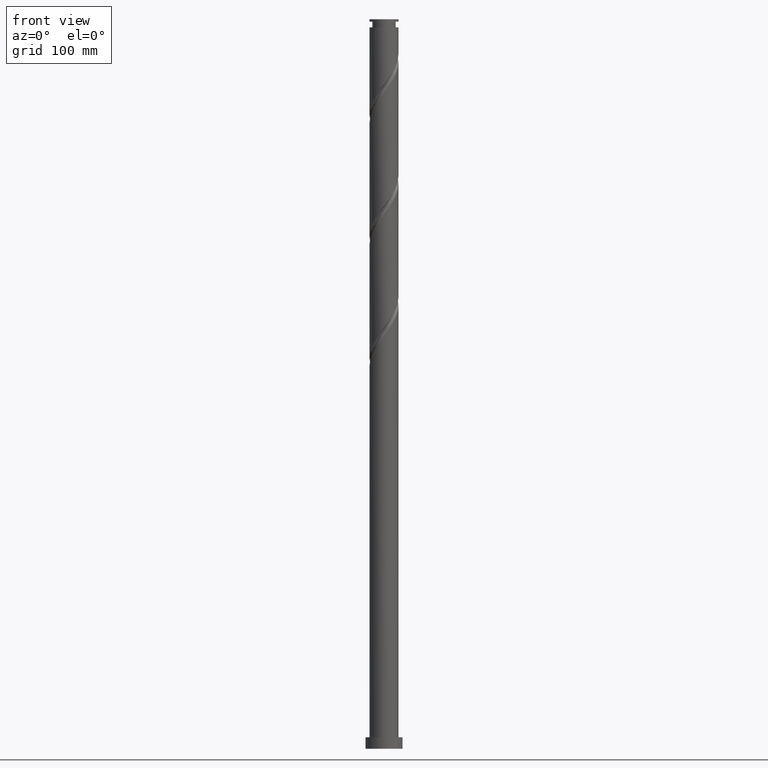
[diagram: clean part render]
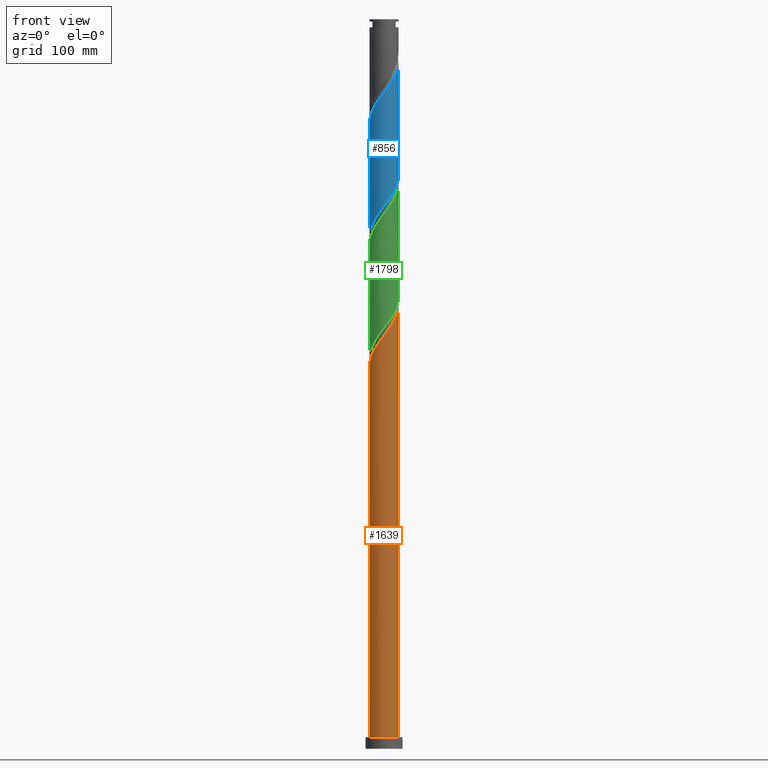
[diagram: same view with three faces highlighted in distinct colors, each labeled with its STEP entity id]
A machine part, front view with three faces highlighted in distinct colors.
Their STEP definitions:

[orange] entity #1639 — the highlighted cylindrical surface (edge-blend (fillet) strip) has radius 12.5 mm, axis along (-0, -0, -1).
#21 = CARTESIAN_POINT ( 'NONE',  ( -3.247457366233087228, -12.12623887693839464, 352.6922435647238103 ) ) ;
#57 = CARTESIAN_POINT ( 'NONE',  ( -6.414510163309529389, -10.72865599060755137, 348.0598906235472896 ) ) ;
#69 = CARTESIAN_POINT ( 'NONE',  ( 8.563682417406976555, -9.105676441308196090, 369.6775376823708825 ) ) ;
#83 = CARTESIAN_POINT ( 'NONE',  ( -0.9639726868114785185, -12.51648534154676540, 355.7804788588413771 ) ) ;
#104 = CARTESIAN_POINT ( 'NONE',  ( 11.27474576508964610, -5.397231506299655202, 375.8540082706061867 ) ) ;
#138 = CYLINDRICAL_SURFACE ( 'NONE', #708, 12.50000000000000000 ) ;
#148 = DIRECTION ( 'NONE',  ( 0.000000000000000000, 0.000000000000000000, 1.000000000000000000 ) ) ;
#175 = CARTESIAN_POINT ( 'NONE',  ( -12.30248021171703243, -2.498125154267604842, 334.1628318000180116 ) ) ;
#184 = CARTESIAN_POINT ( 'NONE',  ( -9.144686059876885764, -8.600370079965571790, 343.4275376823707688 ) ) ;
#218 = CARTESIAN_POINT ( 'NONE',  ( -11.63397781496923677, -4.716164633139658946, 337.2510670941354647 ) ) ;
#229 = DIRECTION ( 'NONE',  ( -0.000000000000000000, -0.000000000000000000, -1.000000000000000000 ) ) ;
#298 = ORIENTED_EDGE ( 'NONE', *, *, #1515, .T. ) ;
#333 =( BOUNDED_CURVE ( )  B_SPLINE_CURVE ( 2, ( #395, #2049, #1726, #175, #711, #218, #2039, #1221, #901, #184, #1887, #1566, #57, #733, #868, #21, #957, #83, #2121, #1773, #1122, #450, #2111, #2100, #1612, #1946, #69, #1578, #617, #581, #104, #429, #1280, #794, #1111, #1451, #1787 ),
 .UNSPECIFIED., .F., .T. ) 
 B_SPLINE_CURVE_WITH_KNOTS ( ( 3, 2, 2, 2, 2, 2, 2, 2, 2, 2, 2, 2, 2, 2, 2, 2, 2, 2, 3 ),
 ( 0.05452935731629041799, 0.05882352941176471894, 0.06617647058823528106, 0.07352941176470584317, 0.08088235294117651630, 0.08823529411764707842, 0.09558823529411764053, 0.1029411764705882026, 0.1102941176470588758, 0.1176470588235294379, 0.1250000000000000000, 0.1323529411764705621, 0.1397058823529411242, 0.1470588235294117974, 0.1544117647058823595, 0.1617647058823529216, 0.1691176470588234837, 0.1764705882352941568, 0.1795293573162907719 ),
 .UNSPECIFIED. ) 
 CURVE ( )  GEOMETRIC_REPRESENTATION_ITEM ( )  RATIONAL_B_SPLINE_CURVE ( ( 0.9072066346052971575, 0.9068261157890641355, 0.9090909090909354839, 0.9052128875409666264, 0.9090909090909354839, 0.9052128875409666264, 0.9090909090909354839, 0.9052128875409666264, 0.9090909090909354839, 0.9052128875409666264, 0.9090909090909354839, 0.9052128875409666264, 0.9090909090909354839, 0.9052128875409666264, 0.9090909090909354839, 0.9052128875409666264, 0.9090909090909354839, 0.9052128875409666264, 0.9090909090909354839, 0.9052128875409666264, 0.9090909090909354839, 0.9052128875409666264, 0.9090909090909354839, 0.9052128875409666264, 0.9090909090909354839, 0.9052128875409666264, 0.9090909090909354839, 0.9052128875409666264, 0.9090909090909354839, 0.9052128875409666264, 0.9090909090909354839, 0.9052128875409666264, 0.9090909090909354839, 0.9052128875409666264, 0.9090909090909354839, 0.9074776808428376418, 0.9072066346052969354 ) ) 
 REPRESENTATION_ITEM ( '' )  );
#353 = VECTOR ( 'NONE', #924, 1000.000000000000000 ) ;
#368 = CARTESIAN_POINT ( 'NONE',  ( 0.000000000000000000, 0.000000000000000000, 10.00000000000000000 ) ) ;
#395 = CARTESIAN_POINT ( 'NONE',  ( -12.50000000000002487, -5.796232452425225323E-15, 330.8146230253239537 ) ) ;
#398 = CARTESIAN_POINT ( 'NONE',  ( -12.50000000000002487, -5.796232452425225323E-15, 330.8146230253239537 ) ) ;
#410 = VERTEX_POINT ( 'NONE', #551 ) ;
#428 = VERTEX_POINT ( 'NONE', #398 ) ;
#429 = CARTESIAN_POINT ( 'NONE',  ( 11.77487291607572928, -4.352472453254565998, 377.3981259176649132 ) ) ;
#450 = CARTESIAN_POINT ( 'NONE',  ( 3.622598259231427864, -12.01950209028173866, 361.9569494470766813 ) ) ;
#467 = VECTOR ( 'NONE', #229, 1000.000000000000000 ) ;
#531 = CIRCLE ( 'NONE', #1487, 12.50000000000000000 ) ;
#551 = CARTESIAN_POINT ( 'NONE',  ( 12.50000000000002309, 6.812067005943047733E-15, 383.3146230253240674 ) ) ;
#581 = CARTESIAN_POINT ( 'NONE',  ( 10.77461861410355759, -6.441990559344743517, 374.3098906235472327 ) ) ;
#604 = CARTESIAN_POINT ( 'NONE',  ( 12.50000000000000000, 1.530808498934191521E-15, 630.0000000000000000 ) ) ;
#617 = CARTESIAN_POINT ( 'NONE',  ( 10.09103310603114956, -7.377062481298623631, 372.7657729764884493 ) ) ;
#707 = FACE_OUTER_BOUND ( 'NONE', #1740, .T. ) ;
#708 = AXIS2_PLACEMENT_3D ( 'NONE', #989, #1380, #1135 ) ;
#711 = CARTESIAN_POINT ( 'NONE',  ( -11.96822901334313016, -3.607144893703630117, 335.7069494470767381 ) ) ;
#723 = EDGE_CURVE ( 'NONE', #428, #1212, #2114, .T. ) ;
#733 = CARTESIAN_POINT ( 'NONE',  ( -5.420353779943434702, -11.32304789119637256, 349.6040082706061298 ) ) ;
#770 = LINE ( 'NONE', #604, #467 ) ;
#794 = CARTESIAN_POINT ( 'NONE',  ( 12.37414804329442219, -2.114736117984123531, 380.4863612117825369 ) ) ;
#868 = CARTESIAN_POINT ( 'NONE',  ( -4.333905573088259189, -11.72464338406738094, 351.1481259176650269 ) ) ;
#901 = CARTESIAN_POINT ( 'NONE',  ( -9.856990158513982081, -7.686985430905862060, 341.8834200353119854 ) ) ;
#924 = DIRECTION ( 'NONE',  ( -0.000000000000000000, -0.000000000000000000, -1.000000000000000000 ) ) ;
#957 = CARTESIAN_POINT ( 'NONE',  ( -2.105715026522279931, -12.32136210924258179, 354.2363612117827074 ) ) ;
#989 = CARTESIAN_POINT ( 'NONE',  ( 0.000000000000000000, 0.000000000000000000, 630.0000000000000000 ) ) ;
#1035 = DIRECTION ( 'NONE',  ( 1.000000000000000000, 0.000000000000000000, 0.000000000000000000 ) ) ;
#1111 = CARTESIAN_POINT ( 'NONE',  ( 12.46309222167394459, -0.9598605492731393518, 382.0304788588414340 ) ) ;
#1122 = CARTESIAN_POINT ( 'NONE',  ( 2.487468592766558295, -12.25000000000001776, 360.4128318000180116 ) ) ;
#1135 = DIRECTION ( 'NONE',  ( -1.000000000000000000, 0.000000000000000000, 0.000000000000000000 ) ) ;
#1157 = VERTEX_POINT ( 'NONE', #2029 ) ;
#1212 = VERTEX_POINT ( 'NONE', #1706 ) ;
#1221 = CARTESIAN_POINT ( 'NONE',  ( -10.56929425715108195, -6.773600781846151442, 340.3393023882531452 ) ) ;
#1249 = ORIENTED_EDGE ( 'NONE', *, *, #1345, .F. ) ;
#1280 = CARTESIAN_POINT ( 'NONE',  ( 12.07451047968507751, -3.233604285619339436, 378.9422435647238103 ) ) ;
#1345 = EDGE_CURVE ( 'NONE', #428, #410, #333, .T. ) ;
#1379 = EDGE_CURVE ( 'NONE', #410, #1157, #770, .T. ) ;
#1380 = DIRECTION ( 'NONE',  ( -0.000000000000000000, -0.000000000000000000, -1.000000000000000000 ) ) ;
#1451 = CARTESIAN_POINT ( 'NONE',  ( 12.50000000000002665, -0.4806398485959881284, 382.6712172732642898 ) ) ;
#1487 = AXIS2_PLACEMENT_3D ( 'NONE', #368, #148, #1035 ) ;
#1515 = EDGE_CURVE ( 'NONE', #1212, #1157, #531, .T. ) ;
#1566 = CARTESIAN_POINT ( 'NONE',  ( -7.408666546675617859, -10.13426409001873374, 346.5157729764885630 ) ) ;
#1578 = CARTESIAN_POINT ( 'NONE',  ( 9.407447597958743302, -8.312134403252509074, 371.2216553294297796 ) ) ;
#1612 = CARTESIAN_POINT ( 'NONE',  ( 6.744705795062980513, -10.52420751116416930, 366.5893023882532020 ) ) ;
#1639 = ADVANCED_FACE ( 'NONE', ( #707 ), #138, .T. ) ;
#1647 = ORIENTED_EDGE ( 'NONE', *, *, #1379, .F. ) ;
#1706 = CARTESIAN_POINT ( 'NONE',  ( -12.50000000000000000, 0.000000000000000000, 10.00000000000000000 ) ) ;
#1726 = CARTESIAN_POINT ( 'NONE',  ( -12.42725830588525149, -1.346570086852728165, 332.6187141529591145 ) ) ;
#1740 = EDGE_LOOP ( 'NONE', ( #1647, #1249, #1871, #298 ) ) ;
#1773 = CARTESIAN_POINT ( 'NONE',  ( 1.352338926301695832, -12.48049790971830220, 358.8687141529590576 ) ) ;
#1787 = CARTESIAN_POINT ( 'NONE',  ( 12.50000000000002309, 6.812067005943047733E-15, 383.3146230253241242 ) ) ;
#1871 = ORIENTED_EDGE ( 'NONE', *, *, #723, .T. ) ;
#1887 = CARTESIAN_POINT ( 'NONE',  ( -8.276676303276255808, -9.367317084992150100, 344.9716553294297228 ) ) ;
#1935 = CARTESIAN_POINT ( 'NONE',  ( -12.50000000000000000, 0.000000000000000000, 630.0000000000000000 ) ) ;
#1946 = CARTESIAN_POINT ( 'NONE',  ( 7.719917236855210696, -9.899218479363890211, 368.1334200353120423 ) ) ;
#2029 = CARTESIAN_POINT ( 'NONE',  ( 12.50000000000000000, 1.530808498934191521E-15, 10.00000000000000000 ) ) ;
#2039 = CARTESIAN_POINT ( 'NONE',  ( -11.10163603606015847, -5.744882707492903862, 338.7951847411944186 ) ) ;
#2049 = CARTESIAN_POINT ( 'NONE',  ( -12.50000000000002487, -0.6752497959907960423, 331.7185422573364804 ) ) ;
#2100 = CARTESIAN_POINT ( 'NONE',  ( 5.769494353270750331, -11.14919654296445550, 365.0451847411943618 ) ) ;
#2111 = CARTESIAN_POINT ( 'NONE',  ( 4.696046306251087543, -11.58434931662309531, 363.5010670941355215 ) ) ;
#2114 = LINE ( 'NONE', #1935, #353 ) ;
#2121 = CARTESIAN_POINT ( 'NONE',  ( 0.1941831197451086011, -12.49849162563253557, 357.3245965059002742 ) ) ;

[blue] entity #856 — the highlighted cylindrical surface (edge-blend (fillet) strip) has radius 12.5 mm, axis along (-0, -0, -1).
#5 = CARTESIAN_POINT ( 'NONE',  ( -12.50000000000000000, 0.000000000000000000, 630.0000000000000000 ) ) ;
#15 = CARTESIAN_POINT ( 'NONE',  ( 9.856990158513971423, -7.686985430905849626, 483.9422435647239240 ) ) ;
#43 = CARTESIAN_POINT ( 'NONE',  ( -9.144686059876885764, -8.600370079965571790, 553.4275376823707120 ) ) ;
#66 = CARTESIAN_POINT ( 'NONE',  ( 10.77461861410355759, -6.441990559344743517, 584.3098906235471759 ) ) ;
#126 = CARTESIAN_POINT ( 'NONE',  ( 11.77487291607572928, -4.352472453254565998, 587.3981259176649701 ) ) ;
#144 = CARTESIAN_POINT ( 'NONE',  ( 11.63397781496921723, -4.716164633139646511, 488.5745965059001605 ) ) ;
#153 = CARTESIAN_POINT ( 'NONE',  ( -12.50000000000000000, -0.4806398485960122757, 443.1544463267715628 ) ) ;
#160 = CARTESIAN_POINT ( 'NONE',  ( -6.744705795062970743, -10.52420751116415509, 459.2363612117826506 ) ) ;
#169 = CARTESIAN_POINT ( 'NONE',  ( 3.247457366233076570, -12.12623887693837688, 473.1334200353120423 ) ) ;
#178 = CARTESIAN_POINT ( 'NONE',  ( 9.144686059876866224, -8.600370079965562908, 482.3981259176648564 ) ) ;
#203 = CARTESIAN_POINT ( 'NONE',  ( -12.50000000000002132, 1.374364395935878062E-15, 540.8146230253239537 ) ) ;
#206 =( BOUNDED_CURVE ( )  B_SPLINE_CURVE ( 2, ( #350, #2023, #825, #2015, #1152, #144, #2005, #660, #15, #178, #499, #861, #1989, #1173, #1821, #169, #313, #1022, #1161, #1493, #997, #331, #1502, #1671, #160, #2176, #671, #1510, #509, #840, #1664, #2183, #679, #2167, #1182, #153, #1850 ),
 .UNSPECIFIED., .F., .T. ) 
 B_SPLINE_CURVE_WITH_KNOTS ( ( 3, 2, 2, 2, 2, 2, 2, 2, 2, 2, 2, 2, 2, 2, 2, 2, 2, 2, 3 ),
 ( 0.5545293573162904943, 0.5588235294117647189, 0.5661764705882352811, 0.5735294117647058432, 0.5808823529411765163, 0.5882352941176470784, 0.5955882352941176405, 0.6029411764705882026, 0.6102941176470588758, 0.6176470588235294379, 0.6250000000000000000, 0.6323529411764705621, 0.6397058823529411242, 0.6470588235294117974, 0.6544117647058823595, 0.6617647058823529216, 0.6691176470588234837, 0.6764705882352941568, 0.6795293573162906053 ),
 .UNSPECIFIED. ) 
 CURVE ( )  GEOMETRIC_REPRESENTATION_ITEM ( )  RATIONAL_B_SPLINE_CURVE ( ( 0.9072066346052909402, 0.9068261157890580293, 0.9090909090909291557, 0.9052128875409607422, 0.9090909090909291557, 0.9052128875409607422, 0.9090909090909291557, 0.9052128875409607422, 0.9090909090909291557, 0.9052128875409607422, 0.9090909090909291557, 0.9052128875409607422, 0.9090909090909291557, 0.9052128875409607422, 0.9090909090909291557, 0.9052128875409607422, 0.9090909090909291557, 0.9052128875409607422, 0.9090909090909291557, 0.9052128875409607422, 0.9090909090909291557, 0.9052128875409607422, 0.9090909090909291557, 0.9052128875409607422, 0.9090909090909291557, 0.9052128875409607422, 0.9090909090909291557, 0.9052128875409607422, 0.9090909090909291557, 0.9052128875409607422, 0.9090909090909291557, 0.9052128875409607422, 0.9090909090909291557, 0.9052128875409607422, 0.9090909090909291557, 0.9074776808428317576, 0.9072066346052909402 ) ) 
 REPRESENTATION_ITEM ( '' )  );
#215 = CARTESIAN_POINT ( 'NONE',  ( -12.50000000000001599, -0.6752497959908603242, 541.7185422573367077 ) ) ;
#225 = CARTESIAN_POINT ( 'NONE',  ( 8.563682417406976555, -9.105676441308196090, 579.6775376823707120 ) ) ;
#239 = EDGE_CURVE ( 'NONE', #598, #1213, #1860, .T. ) ;
#245 = AXIS2_PLACEMENT_3D ( 'NONE', #1325, #812, #837 ) ;
#263 = EDGE_CURVE ( 'NONE', #357, #1213, #206, .T. ) ;
#266 = CARTESIAN_POINT ( 'NONE',  ( 12.07451047968507751, -3.233604285619339436, 588.9422435647236398 ) ) ;
#313 = CARTESIAN_POINT ( 'NONE',  ( 2.105715026522276823, -12.32136210924256403, 471.5893023882532589 ) ) ;
#314 = CARTESIAN_POINT ( 'NONE',  ( 12.50000000000002132, -4.780397898907402125E-16, 593.3146230253239537 ) ) ;
#331 = CARTESIAN_POINT ( 'NONE',  ( -3.622598259231421647, -12.01950209028172090, 463.8687141529590008 ) ) ;
#350 = CARTESIAN_POINT ( 'NONE',  ( 12.50000000000000000, -7.768146585724579434E-15, 495.0110405747118989 ) ) ;
#357 = VERTEX_POINT ( 'NONE', #871 ) ;
#380 = CARTESIAN_POINT ( 'NONE',  ( -12.42725830588525149, -1.346570086852728165, 542.6187141529590008 ) ) ;
#391 = CARTESIAN_POINT ( 'NONE',  ( -6.414510163309529389, -10.72865599060755137, 558.0598906235472896 ) ) ;
#402 = CARTESIAN_POINT ( 'NONE',  ( -3.247457366233087228, -12.12623887693839464, 562.6922435647236398 ) ) ;
#415 = CARTESIAN_POINT ( 'NONE',  ( -4.333905573088259189, -11.72464338406738094, 561.1481259176650838 ) ) ;
#499 = CARTESIAN_POINT ( 'NONE',  ( 8.276676303276238045, -9.367317084992139442, 480.8540082706061298 ) ) ;
#509 = CARTESIAN_POINT ( 'NONE',  ( -10.09103310603113890, -7.377062481298608532, 453.0598906235473464 ) ) ;
#589 = CARTESIAN_POINT ( 'NONE',  ( -10.56929425715108195, -6.773600781846151442, 550.3393023882532589 ) ) ;
#598 = VERTEX_POINT ( 'NONE', #620 ) ;
#620 = CARTESIAN_POINT ( 'NONE',  ( -12.50000000000002132, 1.374364395935878062E-15, 540.8146230253239537 ) ) ;
#639 = CARTESIAN_POINT ( 'NONE',  ( 12.37414804329442219, -2.114736117984123531, 590.4863612117825369 ) ) ;
#660 = CARTESIAN_POINT ( 'NONE',  ( 10.56929425715106063, -6.773600781846142560, 485.4863612117825937 ) ) ;
#671 = CARTESIAN_POINT ( 'NONE',  ( -8.563682417406964120, -9.105676441308181879, 456.1481259176650838 ) ) ;
#679 = CARTESIAN_POINT ( 'NONE',  ( -12.07451047968505975, -3.233604285619334995, 446.8834200353119286 ) ) ;
#694 = ORIENTED_EDGE ( 'NONE', *, *, #263, .F. ) ;
#719 = CARTESIAN_POINT ( 'NONE',  ( 5.769494353270750331, -11.14919654296445550, 575.0451847411944755 ) ) ;
#720 = ORIENTED_EDGE ( 'NONE', *, *, #239, .T. ) ;
#756 = CARTESIAN_POINT ( 'NONE',  ( -0.9639726868114785185, -12.51648534154676540, 565.7804788588415477 ) ) ;
#762 = FACE_OUTER_BOUND ( 'NONE', #1420, .T. ) ;
#812 = DIRECTION ( 'NONE',  ( -0.000000000000000000, -0.000000000000000000, -1.000000000000000000 ) ) ;
#824 = VECTOR ( 'NONE', #875, 1000.000000000000000 ) ;
#825 = CARTESIAN_POINT ( 'NONE',  ( 12.42725830588523195, -1.346570086852733938, 493.2069494470767381 ) ) ;
#837 = DIRECTION ( 'NONE',  ( -1.000000000000000000, 0.000000000000000000, 0.000000000000000000 ) ) ;
#840 = CARTESIAN_POINT ( 'NONE',  ( -10.77461861410353983, -6.441990559344731082, 451.5157729764885062 ) ) ;
#856 = ADVANCED_FACE ( 'NONE', ( #762 ), #1317, .T. ) ;
#861 = CARTESIAN_POINT ( 'NONE',  ( 7.408666546675605424, -10.13426409001871598, 479.3098906235471759 ) ) ;
#871 = CARTESIAN_POINT ( 'NONE',  ( 12.50000000000000000, -7.768146585724579434E-15, 495.0110405747118989 ) ) ;
#875 = DIRECTION ( 'NONE',  ( -0.000000000000000000, -0.000000000000000000, -1.000000000000000000 ) ) ;
#898 = CARTESIAN_POINT ( 'NONE',  ( -11.63397781496923677, -4.716164633139658946, 547.2510670941354647 ) ) ;
#907 = CARTESIAN_POINT ( 'NONE',  ( 9.407447597958743302, -8.312134403252509074, 581.2216553294298365 ) ) ;
#929 = CARTESIAN_POINT ( 'NONE',  ( 2.487468592766558295, -12.25000000000001776, 570.4128318000178979 ) ) ;
#942 = CARTESIAN_POINT ( 'NONE',  ( 12.50000000000002132, -4.780397898907402125E-16, 593.3146230253239537 ) ) ;
#954 = CARTESIAN_POINT ( 'NONE',  ( 12.46309222167394459, -0.9598605492731393518, 592.0304788588417750 ) ) ;
#997 = CARTESIAN_POINT ( 'NONE',  ( -2.487468592766560516, -12.25000000000000000, 465.4128318000179547 ) ) ;
#1022 = CARTESIAN_POINT ( 'NONE',  ( 0.9639726868114723013, -12.51648534154674586, 470.0451847411943049 ) ) ;
#1068 = CARTESIAN_POINT ( 'NONE',  ( 3.622598259231427864, -12.01950209028173866, 571.9569494470766813 ) ) ;
#1079 = CARTESIAN_POINT ( 'NONE',  ( -2.105715026522279931, -12.32136210924258179, 564.2363612117826506 ) ) ;
#1093 = CARTESIAN_POINT ( 'NONE',  ( -11.96822901334313016, -3.607144893703630117, 545.7069494470769087 ) ) ;
#1144 = CARTESIAN_POINT ( 'NONE',  ( 12.50000000000002309, -0.4806398485960490241, 592.6712172732643467 ) ) ;
#1152 = CARTESIAN_POINT ( 'NONE',  ( 11.96822901334311595, -3.607144893703627009, 490.1187141529591713 ) ) ;
#1155 = LINE ( 'NONE', #1702, #824 ) ;
#1161 = CARTESIAN_POINT ( 'NONE',  ( -0.1941831197451131807, -12.49849162563251603, 468.5010670941355784 ) ) ;
#1173 = CARTESIAN_POINT ( 'NONE',  ( 5.420353779943422268, -11.32304789119635302, 476.2216553294296659 ) ) ;
#1182 = CARTESIAN_POINT ( 'NONE',  ( -12.46309222167392505, -0.9598605492731333566, 443.7951847411944755 ) ) ;
#1213 = VERTEX_POINT ( 'NONE', #1714 ) ;
#1227 = CARTESIAN_POINT ( 'NONE',  ( -5.420353779943434702, -11.32304789119637256, 559.6040082706061867 ) ) ;
#1237 = CARTESIAN_POINT ( 'NONE',  ( -7.408666546675617859, -10.13426409001873374, 556.5157729764886199 ) ) ;
#1243 = ORIENTED_EDGE ( 'NONE', *, *, #1733, .F. ) ;
#1317 = CYLINDRICAL_SURFACE ( 'NONE', #245, 12.50000000000000000 ) ;
#1325 = CARTESIAN_POINT ( 'NONE',  ( 0.000000000000000000, 0.000000000000000000, 630.0000000000000000 ) ) ;
#1391 = CARTESIAN_POINT ( 'NONE',  ( 6.744705795062980513, -10.52420751116416930, 576.5893023882534862 ) ) ;
#1403 = CARTESIAN_POINT ( 'NONE',  ( -11.10163603606015847, -5.744882707492903862, 548.7951847411944755 ) ) ;
#1413 = VECTOR ( 'NONE', #1841, 1000.000000000000000 ) ;
#1420 = EDGE_LOOP ( 'NONE', ( #2158, #1243, #720, #694 ) ) ;
#1428 = CARTESIAN_POINT ( 'NONE',  ( 0.1941831197451086011, -12.49849162563253557, 567.3245965059002174 ) ) ;
#1493 = CARTESIAN_POINT ( 'NONE',  ( -1.352338926301692945, -12.48049790971827733, 466.9569494470766813 ) ) ;
#1502 = CARTESIAN_POINT ( 'NONE',  ( -4.696046306251083990, -11.58434931662307932, 462.3245965059002742 ) ) ;
#1510 = CARTESIAN_POINT ( 'NONE',  ( -9.407447597958730867, -8.312134403252489534, 454.6040082706060730 ) ) ;
#1526 = EDGE_CURVE ( 'NONE', #1805, #357, #1155, .T. ) ;
#1575 = CARTESIAN_POINT ( 'NONE',  ( 10.09103310603114956, -7.377062481298623631, 582.7657729764885062 ) ) ;
#1586 = CARTESIAN_POINT ( 'NONE',  ( -9.856990158513982081, -7.686985430905862060, 551.8834200353120423 ) ) ;
#1598 = CARTESIAN_POINT ( 'NONE',  ( 4.696046306251087543, -11.58434931662309531, 573.5010670941354647 ) ) ;
#1656 = CARTESIAN_POINT ( 'NONE',  ( 11.27474576508964610, -5.397231506299655202, 585.8540082706060730 ) ) ;
#1664 = CARTESIAN_POINT ( 'NONE',  ( -11.27474576508963189, -5.397231506299641879, 449.9716553294297796 ) ) ;
#1671 = CARTESIAN_POINT ( 'NONE',  ( -5.769494353270745002, -11.14919654296443596, 460.7804788588412634 ) ) ;
#1702 = CARTESIAN_POINT ( 'NONE',  ( 12.50000000000000000, 1.530808498934191521E-15, 630.0000000000000000 ) ) ;
#1714 = CARTESIAN_POINT ( 'NONE',  ( -12.50000000000000000, 7.230351822097493687E-15, 442.5110405747118989 ) ) ;
#1733 = EDGE_CURVE ( 'NONE', #598, #1805, #1827, .T. ) ;
#1734 = CARTESIAN_POINT ( 'NONE',  ( 7.719917236855210696, -9.899218479363890211, 578.1334200353119286 ) ) ;
#1805 = VERTEX_POINT ( 'NONE', #314 ) ;
#1821 = CARTESIAN_POINT ( 'NONE',  ( 4.333905573088252083, -11.72464338406736317, 474.6775376823708825 ) ) ;
#1827 =( BOUNDED_CURVE ( )  B_SPLINE_CURVE ( 2, ( #203, #215, #380, #1919, #1093, #898, #1403, #589, #1586, #43, #1930, #1237, #391, #1227, #415, #402, #1079, #756, #1428, #2047, #929, #1068, #1598, #719, #1391, #1734, #225, #907, #1575, #66, #1656, #126, #266, #639, #954, #1144, #942 ),
 .UNSPECIFIED., .F., .T. ) 
 B_SPLINE_CURVE_WITH_KNOTS ( ( 3, 2, 2, 2, 2, 2, 2, 2, 2, 2, 2, 2, 2, 2, 2, 2, 2, 2, 3 ),
 ( 0.5545293573162908274, 0.5588235294117647189, 0.5661764705882352811, 0.5735294117647058432, 0.5808823529411764053, 0.5882352941176470784, 0.5955882352941176405, 0.6029411764705883137, 0.6102941176470588758, 0.6176470588235294379, 0.6250000000000000000, 0.6323529411764705621, 0.6397058823529411242, 0.6470588235294116863, 0.6544117647058823595, 0.6617647058823529216, 0.6691176470588235947, 0.6764705882352941568, 0.6795293573162903833 ),
 .UNSPECIFIED. ) 
 CURVE ( )  GEOMETRIC_REPRESENTATION_ITEM ( )  RATIONAL_B_SPLINE_CURVE ( ( 0.9072066346052970465, 0.9068261157890643576, 0.9090909090909354839, 0.9052128875409666264, 0.9090909090909354839, 0.9052128875409666264, 0.9090909090909354839, 0.9052128875409666264, 0.9090909090909354839, 0.9052128875409666264, 0.9090909090909354839, 0.9052128875409666264, 0.9090909090909354839, 0.9052128875409666264, 0.9090909090909354839, 0.9052128875409666264, 0.9090909090909354839, 0.9052128875409666264, 0.9090909090909354839, 0.9052128875409666264, 0.9090909090909354839, 0.9052128875409666264, 0.9090909090909354839, 0.9052128875409666264, 0.9090909090909354839, 0.9052128875409666264, 0.9090909090909354839, 0.9052128875409666264, 0.9090909090909354839, 0.9052128875409666264, 0.9090909090909354839, 0.9052128875409666264, 0.9090909090909354839, 0.9052128875409666264, 0.9090909090909354839, 0.9074776808428378638, 0.9072066346052969354 ) ) 
 REPRESENTATION_ITEM ( '' )  );
#1841 = DIRECTION ( 'NONE',  ( -0.000000000000000000, -0.000000000000000000, -1.000000000000000000 ) ) ;
#1850 = CARTESIAN_POINT ( 'NONE',  ( -12.50000000000000000, 7.230351822097493687E-15, 442.5110405747118989 ) ) ;
#1860 = LINE ( 'NONE', #5, #1413 ) ;
#1919 = CARTESIAN_POINT ( 'NONE',  ( -12.30248021171703243, -2.498125154267604842, 544.1628318000178979 ) ) ;
#1930 = CARTESIAN_POINT ( 'NONE',  ( -8.276676303276255808, -9.367317084992150100, 554.9716553294298365 ) ) ;
#1989 = CARTESIAN_POINT ( 'NONE',  ( 6.414510163309515178, -10.72865599060753539, 477.7657729764885062 ) ) ;
#2005 = CARTESIAN_POINT ( 'NONE',  ( 11.10163603606013893, -5.744882707492901197, 487.0304788588414340 ) ) ;
#2015 = CARTESIAN_POINT ( 'NONE',  ( 12.30248021171700934, -2.498125154267606174, 491.6628318000178410 ) ) ;
#2023 = CARTESIAN_POINT ( 'NONE',  ( 12.50000000000000355, -0.6752497959908101421, 494.1071213426992017 ) ) ;
#2047 = CARTESIAN_POINT ( 'NONE',  ( 1.352338926301695832, -12.48049790971830220, 568.8687141529590008 ) ) ;
#2158 = ORIENTED_EDGE ( 'NONE', *, *, #1526, .F. ) ;
#2167 = CARTESIAN_POINT ( 'NONE',  ( -12.37414804329440088, -2.114736117984117758, 445.3393023882530883 ) ) ;
#2176 = CARTESIAN_POINT ( 'NONE',  ( -7.719917236855200038, -9.899218479363868894, 457.6922435647236398 ) ) ;
#2183 = CARTESIAN_POINT ( 'NONE',  ( -11.77487291607571329, -4.352472453254556228, 448.4275376823708257 ) ) ;

[green] entity #1798 — the highlighted cylindrical surface (edge-blend (fillet) strip) has radius 12.5 mm, axis along (-0, -0, -1).
#30 = EDGE_CURVE ( 'NONE', #2133, #1121, #1856, .T. ) ;
#61 = CARTESIAN_POINT ( 'NONE',  ( -4.333905573088259189, -11.72464338406738094, 456.1481259176649701 ) ) ;
#94 = CARTESIAN_POINT ( 'NONE',  ( 3.247457366233076570, -12.12623887693837688, 368.1334200353120423 ) ) ;
#107 = CARTESIAN_POINT ( 'NONE',  ( 11.77487291607572928, -4.352472453254565998, 482.3981259176650269 ) ) ;
#119 = CARTESIAN_POINT ( 'NONE',  ( -7.719917236855200038, -9.899218479363868894, 352.6922435647236398 ) ) ;
#122 = CARTESIAN_POINT ( 'NONE',  ( 6.744705795062980513, -10.52420751116416930, 471.5893023882532020 ) ) ;
#241 = CARTESIAN_POINT ( 'NONE',  ( -12.50000000000000000, 7.230351822097493687E-15, 337.5110405747118421 ) ) ;
#256 = CARTESIAN_POINT ( 'NONE',  ( 8.276676303276238045, -9.367317084992139442, 375.8540082706061298 ) ) ;
#259 =( BOUNDED_CURVE ( )  B_SPLINE_CURVE ( 2, ( #1590, #781, #2087, #932, #1099, #909, #758, #921, #1764, #1431, #256, #1462, #271, #1292, #1958, #94, #1969, #591, #1750, #284, #629, #1071, #1625, #946, #1266, #119, #1600, #440, #1442, #2134, #1302, #1254, #1922, #1084, #1932, #1737, #241 ),
 .UNSPECIFIED., .F., .T. ) 
 B_SPLINE_CURVE_WITH_KNOTS ( ( 3, 2, 2, 2, 2, 2, 2, 2, 2, 2, 2, 2, 2, 2, 2, 2, 2, 2, 3 ),
 ( 0.8045293573162904943, 0.8088235294117647189, 0.8161764705882352811, 0.8235294117647058432, 0.8308823529411765163, 0.8382352941176470784, 0.8455882352941176405, 0.8529411764705882026, 0.8602941176470588758, 0.8676470588235294379, 0.8750000000000000000, 0.8823529411764705621, 0.8897058823529411242, 0.8970588235294117974, 0.9044117647058823595, 0.9117647058823529216, 0.9191176470588234837, 0.9264705882352941568, 0.9295293573162904943 ),
 .UNSPECIFIED. ) 
 CURVE ( )  GEOMETRIC_REPRESENTATION_ITEM ( )  RATIONAL_B_SPLINE_CURVE ( ( 0.9072066346052909402, 0.9068261157890580293, 0.9090909090909291557, 0.9052128875409607422, 0.9090909090909291557, 0.9052128875409607422, 0.9090909090909291557, 0.9052128875409607422, 0.9090909090909291557, 0.9052128875409607422, 0.9090909090909291557, 0.9052128875409607422, 0.9090909090909291557, 0.9052128875409607422, 0.9090909090909291557, 0.9052128875409607422, 0.9090909090909291557, 0.9052128875409607422, 0.9090909090909291557, 0.9052128875409607422, 0.9090909090909291557, 0.9052128875409607422, 0.9090909090909291557, 0.9052128875409607422, 0.9090909090909291557, 0.9052128875409607422, 0.9090909090909291557, 0.9052128875409607422, 0.9090909090909291557, 0.9052128875409607422, 0.9090909090909291557, 0.9052128875409607422, 0.9090909090909291557, 0.9052128875409607422, 0.9090909090909291557, 0.9074776808428317576, 0.9072066346052909402 ) ) 
 REPRESENTATION_ITEM ( '' )  );
#271 = CARTESIAN_POINT ( 'NONE',  ( 6.414510163309515178, -10.72865599060753539, 372.7657729764885062 ) ) ;
#284 = CARTESIAN_POINT ( 'NONE',  ( -1.352338926301692945, -12.48049790971827733, 361.9569494470766813 ) ) ;
#341 = CARTESIAN_POINT ( 'NONE',  ( -12.50000000000002487, -5.796232452425225323E-15, 435.8146230253240105 ) ) ;
#386 = CARTESIAN_POINT ( 'NONE',  ( -12.30248021171703243, -2.498125154267604842, 439.1628318000178979 ) ) ;
#411 = CARTESIAN_POINT ( 'NONE',  ( -5.420353779943434702, -11.32304789119637256, 454.6040082706060161 ) ) ;
#420 = CARTESIAN_POINT ( 'NONE',  ( 2.487468592766558295, -12.25000000000001776, 465.4128318000178410 ) ) ;
#440 = CARTESIAN_POINT ( 'NONE',  ( -9.407447597958730867, -8.312134403252489534, 349.6040082706061298 ) ) ;
#464 = CARTESIAN_POINT ( 'NONE',  ( 3.622598259231427864, -12.01950209028173866, 466.9569494470767381 ) ) ;
#470 = DIRECTION ( 'NONE',  ( -0.000000000000000000, -0.000000000000000000, -1.000000000000000000 ) ) ;
#498 = EDGE_CURVE ( 'NONE', #2133, #1298, #1748, .T. ) ;
#526 = CARTESIAN_POINT ( 'NONE',  ( -2.105715026522279931, -12.32136210924258179, 459.2363612117826506 ) ) ;
#574 = CARTESIAN_POINT ( 'NONE',  ( -3.247457366233087228, -12.12623887693839464, 457.6922435647238103 ) ) ;
#591 = CARTESIAN_POINT ( 'NONE',  ( 0.9639726868114723013, -12.51648534154674586, 365.0451847411943618 ) ) ;
#594 = CARTESIAN_POINT ( 'NONE',  ( 11.27474576508964610, -5.397231506299655202, 480.8540082706060730 ) ) ;
#609 = CARTESIAN_POINT ( 'NONE',  ( -0.9639726868114785185, -12.51648534154676540, 460.7804788588414908 ) ) ;
#623 = ORIENTED_EDGE ( 'NONE', *, *, #30, .T. ) ;
#629 = CARTESIAN_POINT ( 'NONE',  ( -2.487468592766560516, -12.25000000000000000, 360.4128318000179547 ) ) ;
#676 = CARTESIAN_POINT ( 'NONE',  ( 12.50000000000000000, -7.768146585724579434E-15, 390.0110405747118989 ) ) ;
#751 = CARTESIAN_POINT ( 'NONE',  ( 10.09103310603114956, -7.377062481298623631, 477.7657729764885062 ) ) ;
#758 = CARTESIAN_POINT ( 'NONE',  ( 11.10163603606013893, -5.744882707492901197, 382.0304788588414340 ) ) ;
#775 = CARTESIAN_POINT ( 'NONE',  ( 0.1941831197451086011, -12.49849162563253557, 462.3245965059002174 ) ) ;
#781 = CARTESIAN_POINT ( 'NONE',  ( 12.50000000000000355, -0.6752497959908101421, 389.1071213426992585 ) ) ;
#785 = CARTESIAN_POINT ( 'NONE',  ( 4.696046306251087543, -11.58434931662309531, 468.5010670941355784 ) ) ;
#894 = CARTESIAN_POINT ( 'NONE',  ( -7.408666546675617859, -10.13426409001873374, 451.5157729764885062 ) ) ;
#904 = CARTESIAN_POINT ( 'NONE',  ( -11.10163603606015847, -5.744882707492903862, 443.7951847411944755 ) ) ;
#909 = CARTESIAN_POINT ( 'NONE',  ( 11.63397781496921723, -4.716164633139646511, 383.5745965059002742 ) ) ;
#921 = CARTESIAN_POINT ( 'NONE',  ( 10.56929425715106063, -6.773600781846142560, 380.4863612117825937 ) ) ;
#932 = CARTESIAN_POINT ( 'NONE',  ( 12.30248021171700934, -2.498125154267606174, 386.6628318000179547 ) ) ;
#946 = CARTESIAN_POINT ( 'NONE',  ( -5.769494353270745002, -11.14919654296443596, 355.7804788588414340 ) ) ;
#949 = CARTESIAN_POINT ( 'NONE',  ( 10.77461861410355759, -6.441990559344743517, 479.3098906235473464 ) ) ;
#988 = CARTESIAN_POINT ( 'NONE',  ( -12.50000000000000000, 0.000000000000000000, 630.0000000000000000 ) ) ;
#1055 = EDGE_LOOP ( 'NONE', ( #2077, #1139, #623, #1776 ) ) ;
#1071 = CARTESIAN_POINT ( 'NONE',  ( -3.622598259231421647, -12.01950209028172090, 358.8687141529590008 ) ) ;
#1084 = CARTESIAN_POINT ( 'NONE',  ( -12.37414804329440088, -2.114736117984117758, 340.3393023882531452 ) ) ;
#1091 = VERTEX_POINT ( 'NONE', #676 ) ;
#1099 = CARTESIAN_POINT ( 'NONE',  ( 11.96822901334311595, -3.607144893703627009, 385.1187141529591145 ) ) ;
#1108 = LINE ( 'NONE', #1990, #1138 ) ;
#1121 = VERTEX_POINT ( 'NONE', #1196 ) ;
#1126 = CARTESIAN_POINT ( 'NONE',  ( 5.769494353270750331, -11.14919654296445550, 470.0451847411943618 ) ) ;
#1138 = VECTOR ( 'NONE', #1771, 1000.000000000000000 ) ;
#1139 = ORIENTED_EDGE ( 'NONE', *, *, #498, .F. ) ;
#1140 = CARTESIAN_POINT ( 'NONE',  ( 12.37414804329442219, -2.114736117984123531, 485.4863612117826506 ) ) ;
#1153 = FACE_OUTER_BOUND ( 'NONE', #1055, .T. ) ;
#1196 = CARTESIAN_POINT ( 'NONE',  ( -12.50000000000000000, 7.230351822097493687E-15, 337.5110405747118421 ) ) ;
#1233 = CARTESIAN_POINT ( 'NONE',  ( -10.56929425715108195, -6.773600781846151442, 445.3393023882532020 ) ) ;
#1244 = CARTESIAN_POINT ( 'NONE',  ( -12.42725830588525149, -1.346570086852728165, 437.6187141529590576 ) ) ;
#1253 = DIRECTION ( 'NONE',  ( -0.000000000000000000, -0.000000000000000000, -1.000000000000000000 ) ) ;
#1254 = CARTESIAN_POINT ( 'NONE',  ( -11.77487291607571329, -4.352472453254556228, 343.4275376823708257 ) ) ;
#1266 = CARTESIAN_POINT ( 'NONE',  ( -6.744705795062970743, -10.52420751116415509, 354.2363612117825369 ) ) ;
#1271 = CARTESIAN_POINT ( 'NONE',  ( 12.46309222167394459, -0.9598605492731393518, 487.0304788588414340 ) ) ;
#1292 = CARTESIAN_POINT ( 'NONE',  ( 5.420353779943422268, -11.32304789119635302, 371.2216553294296659 ) ) ;
#1298 = VERTEX_POINT ( 'NONE', #1555 ) ;
#1302 = CARTESIAN_POINT ( 'NONE',  ( -11.27474576508963189, -5.397231506299641879, 344.9716553294296659 ) ) ;
#1353 = EDGE_CURVE ( 'NONE', #1091, #1121, #259, .T. ) ;
#1409 = CARTESIAN_POINT ( 'NONE',  ( -12.50000000000002665, -5.796232452425225323E-15, 435.8146230253240105 ) ) ;
#1431 = CARTESIAN_POINT ( 'NONE',  ( 9.144686059876866224, -8.600370079965562908, 377.3981259176647995 ) ) ;
#1434 = CARTESIAN_POINT ( 'NONE',  ( 9.407447597958743302, -8.312134403252509074, 476.2216553294296091 ) ) ;
#1442 = CARTESIAN_POINT ( 'NONE',  ( -10.09103310603113890, -7.377062481298608532, 348.0598906235472327 ) ) ;
#1462 = CARTESIAN_POINT ( 'NONE',  ( 7.408666546675605424, -10.13426409001871598, 374.3098906235471759 ) ) ;
#1555 = CARTESIAN_POINT ( 'NONE',  ( 12.50000000000002309, 6.812067005943047733E-15, 488.3146230253238969 ) ) ;
#1558 = CARTESIAN_POINT ( 'NONE',  ( -6.414510163309529389, -10.72865599060755137, 453.0598906235473464 ) ) ;
#1590 = CARTESIAN_POINT ( 'NONE',  ( 12.50000000000000000, -7.768146585724579434E-15, 390.0110405747118421 ) ) ;
#1600 = CARTESIAN_POINT ( 'NONE',  ( -8.563682417406964120, -9.105676441308181879, 351.1481259176650269 ) ) ;
#1607 = DIRECTION ( 'NONE',  ( -1.000000000000000000, 0.000000000000000000, 0.000000000000000000 ) ) ;
#1615 = CARTESIAN_POINT ( 'NONE',  ( 8.563682417406976555, -9.105676441308196090, 474.6775376823708825 ) ) ;
#1625 = CARTESIAN_POINT ( 'NONE',  ( -4.696046306251083990, -11.58434931662307932, 357.3245965059004448 ) ) ;
#1640 = CARTESIAN_POINT ( 'NONE',  ( 1.352338926301695832, -12.48049790971830220, 463.8687141529590576 ) ) ;
#1698 = CARTESIAN_POINT ( 'NONE',  ( -9.144686059876885764, -8.600370079965571790, 448.4275376823709394 ) ) ;
#1719 = CARTESIAN_POINT ( 'NONE',  ( -11.63397781496923677, -4.716164633139658946, 442.2510670941355215 ) ) ;
#1737 = CARTESIAN_POINT ( 'NONE',  ( -12.49999999999999822, -0.4806398485960296507, 338.1544463267716196 ) ) ;
#1748 =( BOUNDED_CURVE ( )  B_SPLINE_CURVE ( 2, ( #1409, #1891, #1244, #386, #1915, #1719, #904, #1233, #2079, #1698, #2033, #894, #1558, #411, #61, #574, #526, #609, #775, #1640, #420, #464, #785, #1126, #122, #1790, #1615, #1434, #751, #949, #594, #107, #1925, #1140, #1271, #1961, #1753 ),
 .UNSPECIFIED., .F., .T. ) 
 B_SPLINE_CURVE_WITH_KNOTS ( ( 3, 2, 2, 2, 2, 2, 2, 2, 2, 2, 2, 2, 2, 2, 2, 2, 2, 2, 3 ),
 ( 0.3045293573162906053, 0.3088235294117647189, 0.3161764705882352811, 0.3235294117647058432, 0.3308823529411765163, 0.3382352941176470784, 0.3455882352941176405, 0.3529411764705882026, 0.3602941176470588758, 0.3676470588235294379, 0.3750000000000000000, 0.3823529411764705621, 0.3897058823529411242, 0.3970588235294117974, 0.4044117647058823595, 0.4117647058823529216, 0.4191176470588234837, 0.4264705882352941568, 0.4295293573162907719 ),
 .UNSPECIFIED. ) 
 CURVE ( )  GEOMETRIC_REPRESENTATION_ITEM ( )  RATIONAL_B_SPLINE_CURVE ( ( 0.9072066346052970465, 0.9068261157890642465, 0.9090909090909354839, 0.9052128875409666264, 0.9090909090909354839, 0.9052128875409666264, 0.9090909090909354839, 0.9052128875409666264, 0.9090909090909354839, 0.9052128875409666264, 0.9090909090909354839, 0.9052128875409666264, 0.9090909090909354839, 0.9052128875409666264, 0.9090909090909354839, 0.9052128875409666264, 0.9090909090909354839, 0.9052128875409666264, 0.9090909090909354839, 0.9052128875409666264, 0.9090909090909354839, 0.9052128875409666264, 0.9090909090909354839, 0.9052128875409666264, 0.9090909090909354839, 0.9052128875409666264, 0.9090909090909354839, 0.9052128875409666264, 0.9090909090909354839, 0.9052128875409666264, 0.9090909090909354839, 0.9052128875409666264, 0.9090909090909354839, 0.9052128875409666264, 0.9090909090909354839, 0.9074776808428376418, 0.9072066346052969354 ) ) 
 REPRESENTATION_ITEM ( '' )  );
#1750 = CARTESIAN_POINT ( 'NONE',  ( -0.1941831197451131807, -12.49849162563251603, 363.5010670941355215 ) ) ;
#1753 = CARTESIAN_POINT ( 'NONE',  ( 12.50000000000002309, 6.812067005943047733E-15, 488.3146230253238969 ) ) ;
#1764 = CARTESIAN_POINT ( 'NONE',  ( 9.856990158513971423, -7.686985430905849626, 378.9422435647238103 ) ) ;
#1771 = DIRECTION ( 'NONE',  ( -0.000000000000000000, -0.000000000000000000, -1.000000000000000000 ) ) ;
#1776 = ORIENTED_EDGE ( 'NONE', *, *, #1353, .F. ) ;
#1790 = CARTESIAN_POINT ( 'NONE',  ( 7.719917236855210696, -9.899218479363890211, 473.1334200353120991 ) ) ;
#1798 = ADVANCED_FACE ( 'NONE', ( #1153 ), #1822, .T. ) ;
#1822 = CYLINDRICAL_SURFACE ( 'NONE', #1866, 12.50000000000000000 ) ;
#1835 = EDGE_CURVE ( 'NONE', #1298, #1091, #1108, .T. ) ;
#1856 = LINE ( 'NONE', #988, #2189 ) ;
#1866 = AXIS2_PLACEMENT_3D ( 'NONE', #1954, #470, #1607 ) ;
#1891 = CARTESIAN_POINT ( 'NONE',  ( -12.50000000000002132, -0.6752497959908254632, 436.7185422573367077 ) ) ;
#1915 = CARTESIAN_POINT ( 'NONE',  ( -11.96822901334313016, -3.607144893703630117, 440.7069494470766813 ) ) ;
#1922 = CARTESIAN_POINT ( 'NONE',  ( -12.07451047968505975, -3.233604285619334995, 341.8834200353120991 ) ) ;
#1925 = CARTESIAN_POINT ( 'NONE',  ( 12.07451047968507751, -3.233604285619339436, 483.9422435647238672 ) ) ;
#1932 = CARTESIAN_POINT ( 'NONE',  ( -12.46309222167392505, -0.9598605492731333566, 338.7951847411944186 ) ) ;
#1954 = CARTESIAN_POINT ( 'NONE',  ( 0.000000000000000000, 0.000000000000000000, 630.0000000000000000 ) ) ;
#1958 = CARTESIAN_POINT ( 'NONE',  ( 4.333905573088252083, -11.72464338406736317, 369.6775376823707688 ) ) ;
#1961 = CARTESIAN_POINT ( 'NONE',  ( 12.50000000000002665, -0.4806398485959881284, 487.6712172732642898 ) ) ;
#1969 = CARTESIAN_POINT ( 'NONE',  ( 2.105715026522276823, -12.32136210924256403, 366.5893023882533157 ) ) ;
#1990 = CARTESIAN_POINT ( 'NONE',  ( 12.50000000000000000, 1.530808498934191521E-15, 630.0000000000000000 ) ) ;
#2033 = CARTESIAN_POINT ( 'NONE',  ( -8.276676303276255808, -9.367317084992150100, 449.9716553294297796 ) ) ;
#2077 = ORIENTED_EDGE ( 'NONE', *, *, #1835, .F. ) ;
#2079 = CARTESIAN_POINT ( 'NONE',  ( -9.856990158513982081, -7.686985430905862060, 446.8834200353119854 ) ) ;
#2087 = CARTESIAN_POINT ( 'NONE',  ( 12.42725830588523195, -1.346570086852733938, 388.2069494470767950 ) ) ;
#2133 = VERTEX_POINT ( 'NONE', #341 ) ;
#2134 = CARTESIAN_POINT ( 'NONE',  ( -10.77461861410353983, -6.441990559344731082, 346.5157729764884493 ) ) ;
#2189 = VECTOR ( 'NONE', #1253, 1000.000000000000000 ) ;